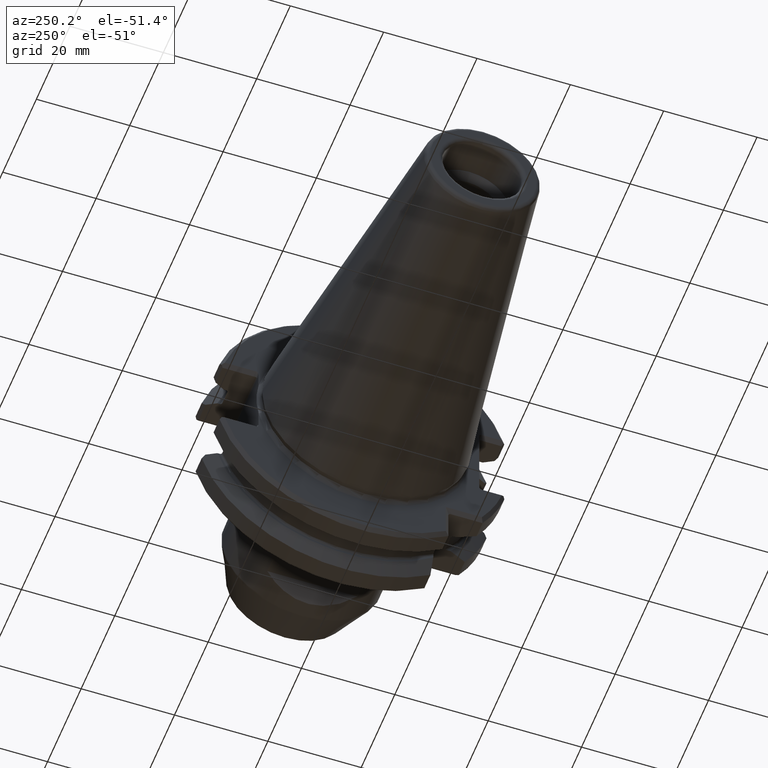
[diagram: clean part render]
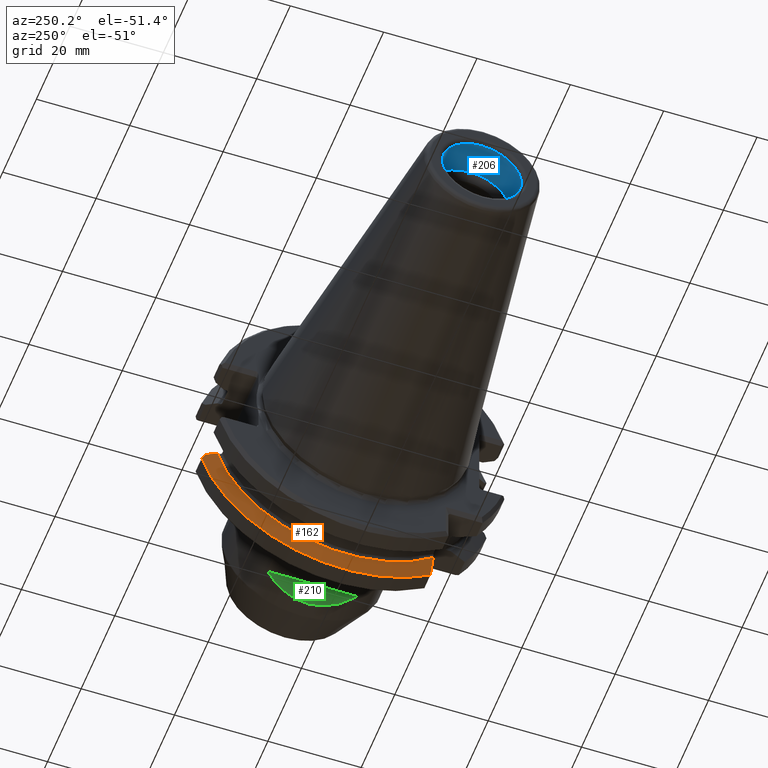
[diagram: same view with three faces highlighted in distinct colors, each labeled with its STEP entity id]
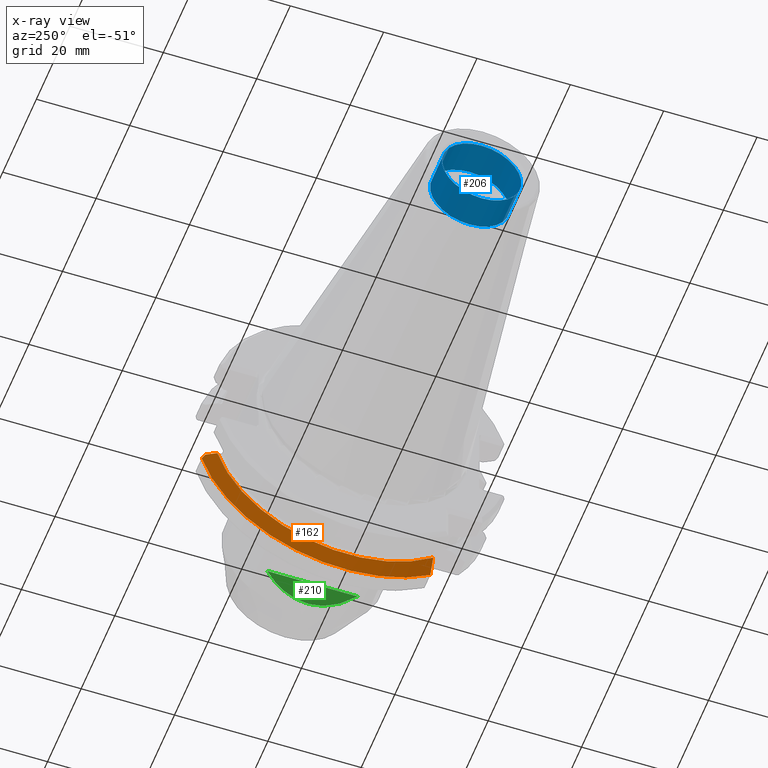
[diagram: x-ray of the same camera — body ghosted, the three highlighted faces saturated]
A machine part, auxiliary view with three faces highlighted in distinct colors.
The next image is the same camera in x-ray (body ghosted, the three faces saturated) — at least one of them is partly hidden behind the body in this view.
Their STEP definitions:

[orange] entity #162 — the highlighted conical surface has half-angle 60 deg.
#162 = ADVANCED_FACE( '', ( #441 ), #442, .T. );
#441 = FACE_OUTER_BOUND( '', #873, .T. );
#442 = CONICAL_SURFACE( '', #874, 31.7750000000000, 1.04719755119660 );
#873 = EDGE_LOOP( '', ( #1313, #1314, #1315, #1316, #1317 ) );
#874 = AXIS2_PLACEMENT_3D( '', #1318, #1319, #1320 );
#1313 = ORIENTED_EDGE( '', *, *, #2382, .F. );
#1314 = ORIENTED_EDGE( '', *, *, #2383, .F. );
#1315 = ORIENTED_EDGE( '', *, *, #2384, .T. );
#1316 = ORIENTED_EDGE( '', *, *, #2385, .T. );
#1317 = ORIENTED_EDGE( '', *, *, #2386, .F. );
#1318 = CARTESIAN_POINT( '', ( 14.6362703987865, 0.000000000000000, 0.000000000000000 ) );
#1319 = DIRECTION( '', ( 1.00000000000000, -0.000000000000000, 0.000000000000000 ) );
#1320 = DIRECTION( '', ( 0.000000000000000, 0.000000000000000, -1.00000000000000 ) );
#2382 = EDGE_CURVE( '', #2812, #2813, #2814, .T. );
#2383 = EDGE_CURVE( '', #2815, #2812, #2816, .T. );
#2384 = EDGE_CURVE( '', #2815, #2817, #2818, .T. );
#2385 = EDGE_CURVE( '', #2817, #2819, #2820, .T. );
#2386 = EDGE_CURVE( '', #2813, #2819, #2821, .T. );
#2812 = VERTEX_POINT( '', #3437 );
#2813 = VERTEX_POINT( '', #3438 );
#2814 = CIRCLE( '', #3439, 28.8975952641917 );
#2815 = VERTEX_POINT( '', #3440 );
#2816 = B_SPLINE_CURVE_WITH_KNOTS( '', 3, ( #3441, #3442, #3443, #3444 ), .UNSPECIFIED., .F., .F., ( 4, 4 ), ( 0.0109855852384572, 0.0134146547261905 ), .UNSPECIFIED. );
#2817 = VERTEX_POINT( '', #3445 );
#2818 = B_SPLINE_CURVE_WITH_KNOTS( '', 3, ( #3446, #3447, #3448, #3449 ), .UNSPECIFIED., .F., .F., ( 4, 4 ), ( 2.74217588641003E-007, 0.00115563070328611 ), .UNSPECIFIED. );
#2819 = VERTEX_POINT( '', #3450 );
#2820 = CIRCLE( '', #3451, 31.7750000000000 );
#2821 = B_SPLINE_CURVE_WITH_KNOTS( '', 3, ( #3452, #3453, #3454, #3455 ), .UNSPECIFIED., .F., .F., ( 4, 4 ), ( 0.0105829617700175, 0.0145753145118466 ), .UNSPECIFIED. );
#3437 = CARTESIAN_POINT( '', ( 12.9750000000000, 27.7537116806569, -8.05000000000000 ) );
#3438 = CARTESIAN_POINT( '', ( 12.9750000000000, -18.5000000000000, -22.1995723394175 ) );
#3439 = AXIS2_PLACEMENT_3D( '', #4480, #4481, #4482 );
#3440 = CARTESIAN_POINT( '', ( 14.1554442599323, 29.8766847872852, -8.05000000000000 ) );
#3441 = CARTESIAN_POINT( '', ( 14.1554442599323, 29.8766847872852, -8.05000000000000 ) );
#3442 = CARTESIAN_POINT( '', ( 13.7611889765241, 29.1694612299512, -8.05000000000000 ) );
#3443 = CARTESIAN_POINT( '', ( 13.3676517494326, 28.4618348360729, -8.05000000000000 ) );
#3444 = CARTESIAN_POINT( '', ( 12.9750000000000, 27.7537116806569, -8.05000000000000 ) );
#3445 = CARTESIAN_POINT( '', ( 14.6362703987865, 30.5056050293407, -8.89149519450261 ) );
#3446 = CARTESIAN_POINT( '', ( 14.1554442599323, 29.8766847872852, -8.05000000000000 ) );
#3447 = CARTESIAN_POINT( '', ( 14.3146630736125, 30.0866132143932, -8.33088420564029 ) );
#3448 = CARTESIAN_POINT( '', ( 14.4749703347314, 30.2962467990336, -8.61137391210080 ) );
#3449 = CARTESIAN_POINT( '', ( 14.6362703987865, 30.5056050293407, -8.89149519450260 ) );
#3450 = CARTESIAN_POINT( '', ( 14.6362703987865, -18.5000000000000, -25.8340981069594 ) );
#3451 = AXIS2_PLACEMENT_3D( '', #4483, #4484, #4485 );
#3452 = CARTESIAN_POINT( '', ( 12.9750000000000, -18.5000000000000, -22.1995723394175 ) );
#3453 = CARTESIAN_POINT( '', ( 13.5148571363269, -18.5000000000000, -23.4167572786222 ) );
#3454 = CARTESIAN_POINT( '', ( 14.0701355161426, -18.5000000000000, -24.6280273234163 ) );
#3455 = CARTESIAN_POINT( '', ( 14.6362703987865, -18.5000000000000, -25.8340981069593 ) );
#4480 = CARTESIAN_POINT( '', ( 12.9750000000000, 0.000000000000000, 0.000000000000000 ) );
#4481 = DIRECTION( '', ( -1.00000000000000, 0.000000000000000, 0.000000000000000 ) );
#4482 = DIRECTION( '', ( 0.000000000000000, 0.000000000000000, 1.00000000000000 ) );
#4483 = CARTESIAN_POINT( '', ( 14.6362703987865, 0.000000000000000, 0.000000000000000 ) );
#4484 = DIRECTION( '', ( -1.00000000000000, 0.000000000000000, 0.000000000000000 ) );
#4485 = DIRECTION( '', ( 0.000000000000000, 0.000000000000000, 1.00000000000000 ) );

[blue] entity #206 — the highlighted cylindrical surface (bore or boss wall) has radius 8.5 mm, axis along (1, -0, -0).
#206 = ADVANCED_FACE( '', ( #514, #515 ), #516, .F. );
#514 = FACE_OUTER_BOUND( '', #946, .T. );
#515 = FACE_OUTER_BOUND( '', #947, .T. );
#516 = CYLINDRICAL_SURFACE( '', #948, 8.50000000000000 );
#946 = EDGE_LOOP( '', ( #1484 ) );
#947 = EDGE_LOOP( '', ( #1485 ) );
#948 = AXIS2_PLACEMENT_3D( '', #1486, #1487, #1488 );
#1484 = ORIENTED_EDGE( '', *, *, #2479, .F. );
#1485 = ORIENTED_EDGE( '', *, *, #2396, .T. );
#1486 = CARTESIAN_POINT( '', ( -60.0000000000000, 0.000000000000000, 0.000000000000000 ) );
#1487 = DIRECTION( '', ( 1.00000000000000, -0.000000000000000, -0.000000000000000 ) );
#1488 = DIRECTION( '', ( 0.000000000000000, 0.000000000000000, 1.00000000000000 ) );
#2396 = EDGE_CURVE( '', #2837, #2837, #2838, .T. );
#2479 = EDGE_CURVE( '', #2976, #2976, #2977, .T. );
#2837 = VERTEX_POINT( '', #3473 );
#2838 = CIRCLE( '', #3474, 8.50000000000000 );
#2976 = VERTEX_POINT( '', #3685 );
#2977 = CIRCLE( '', #3686, 8.50000000000000 );
#3473 = CARTESIAN_POINT( '', ( -67.2500000000000, 0.000000000000000, 8.50000000000000 ) );
#3474 = AXIS2_PLACEMENT_3D( '', #4500, #4501, #4502 );
#3685 = CARTESIAN_POINT( '', ( -60.0500000000000, 0.000000000000000, 8.50000000000000 ) );
#3686 = AXIS2_PLACEMENT_3D( '', #4601, #4602, #4603 );
#4500 = CARTESIAN_POINT( '', ( -67.2500000000000, 0.000000000000000, 0.000000000000000 ) );
#4501 = DIRECTION( '', ( -1.00000000000000, 0.000000000000000, 0.000000000000000 ) );
#4502 = DIRECTION( '', ( 0.000000000000000, 0.000000000000000, 1.00000000000000 ) );
#4601 = CARTESIAN_POINT( '', ( -60.0500000000000, 0.000000000000000, 0.000000000000000 ) );
#4602 = DIRECTION( '', ( -1.00000000000000, 0.000000000000000, 0.000000000000000 ) );
#4603 = DIRECTION( '', ( 0.000000000000000, 0.000000000000000, 1.00000000000000 ) );

[green] entity #210 — the highlighted planar face has unit normal (0.7071, 0, 0.7071).
#210 = ADVANCED_FACE( '', ( #521 ), #522, .F. );
#521 = FACE_OUTER_BOUND( '', #953, .T. );
#522 = PLANE( '', #954 );
#953 = EDGE_LOOP( '', ( #1498, #1499 ) );
#954 = AXIS2_PLACEMENT_3D( '', #1500, #1501, #1502 );
#1498 = ORIENTED_EDGE( '', *, *, #2485, .T. );
#1499 = ORIENTED_EDGE( '', *, *, #2486, .F. );
#1500 = CARTESIAN_POINT( '', ( 33.5000000000000, -56.3537044035261, -14.3000000000000 ) );
#1501 = DIRECTION( '', ( 0.707106781186547, 0.000000000000000, 0.707106781186548 ) );
#1502 = DIRECTION( '', ( 0.707106781186548, 0.000000000000000, -0.707106781186547 ) );
#2485 = EDGE_CURVE( '', #2985, #2986, #2987, .T. );
#2486 = EDGE_CURVE( '', #2985, #2986, #2988, .T. );
#2985 = VERTEX_POINT( '', #3695 );
#2986 = VERTEX_POINT( '', #3696 );
#2987 = LINE( '', #3697, #3698 );
#2988 = ELLIPSE( '', #3699, 24.3951839509359, 17.2500000000000 );
#3695 = CARTESIAN_POINT( '', ( 33.5000000000000, -9.64740897858074, -14.3000000000000 ) );
#3696 = CARTESIAN_POINT( '', ( 33.5000000000000, 9.64740897858074, -14.3000000000000 ) );
#3697 = CARTESIAN_POINT( '', ( 33.5000000000000, -56.3537044035261, -14.3000000000000 ) );
#3698 = VECTOR( '', #4611, 1000.00000000000 );
#3699 = AXIS2_PLACEMENT_3D( '', #4612, #4613, #4614 );
#4611 = DIRECTION( '', ( 0.000000000000000, 1.00000000000000, 0.000000000000000 ) );
#4612 = CARTESIAN_POINT( '', ( 19.2000000000000, 0.000000000000000, 6.93889390390723E-015 ) );
#4613 = DIRECTION( '', ( 0.707106781186547, 0.000000000000000, 0.707106781186548 ) );
#4614 = DIRECTION( '', ( -0.707106781186548, 0.000000000000000, 0.707106781186547 ) );